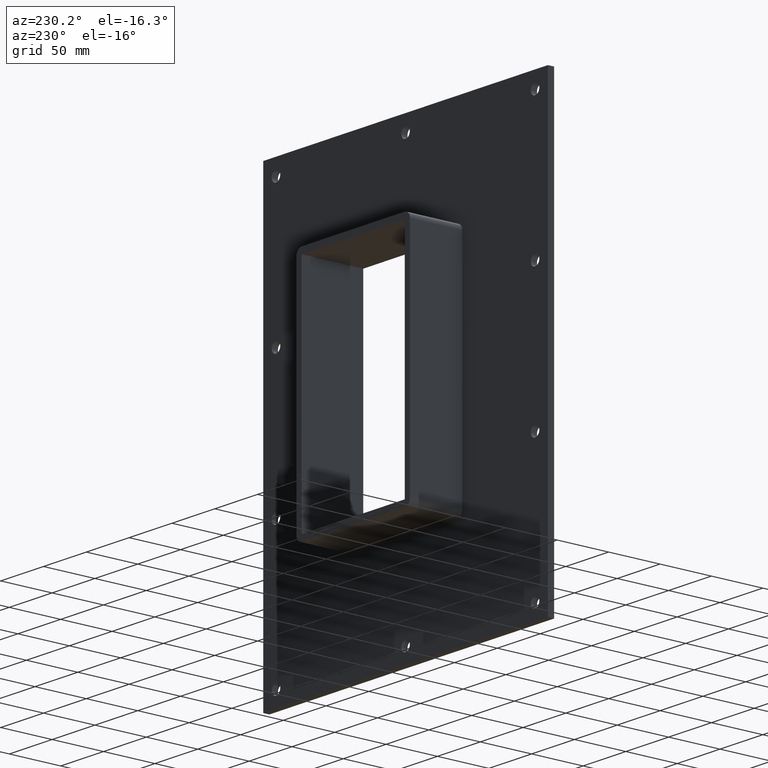
[diagram: clean part render]
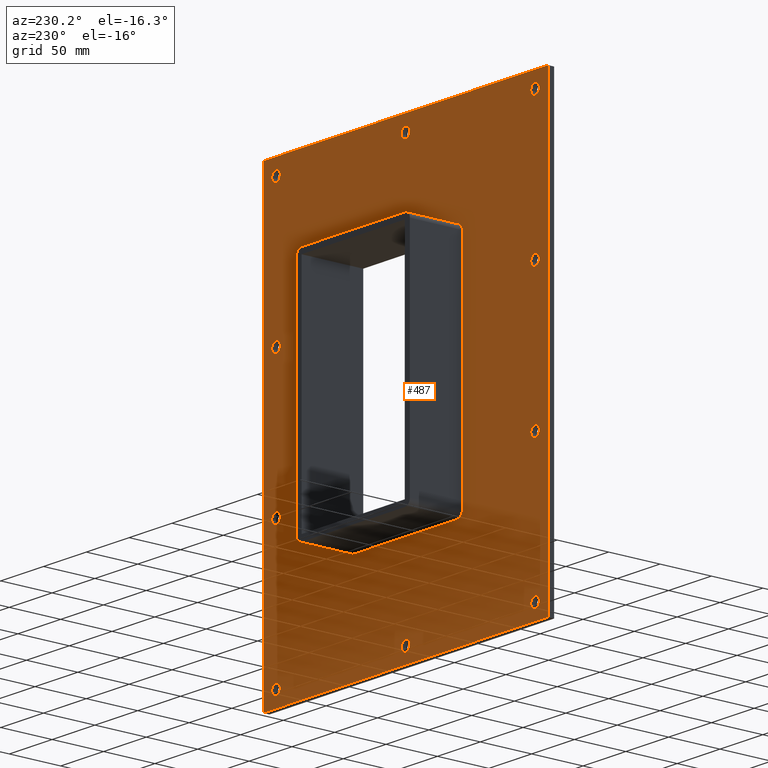
[diagram: same view with one face highlighted and labeled with its STEP entity id]
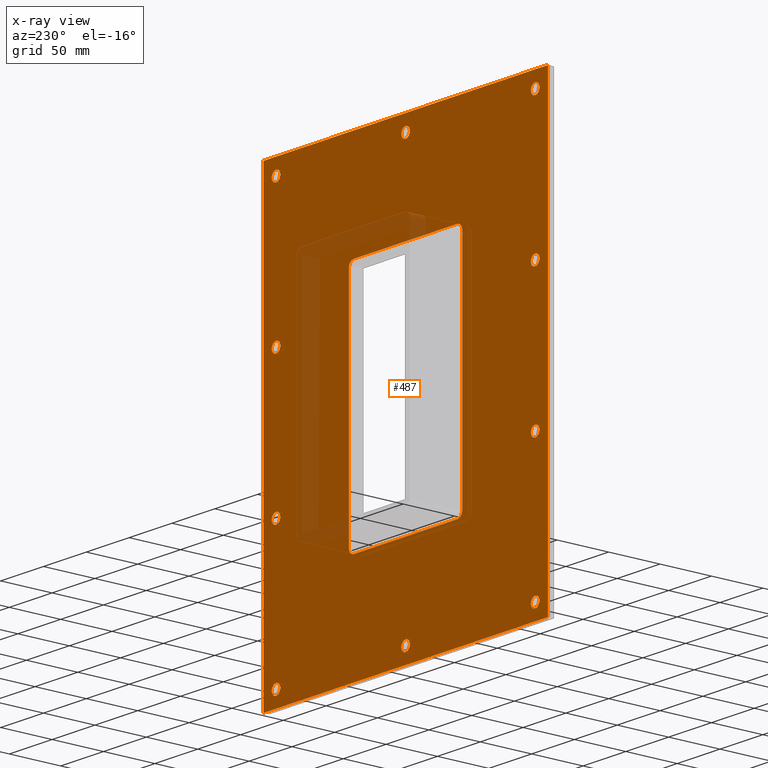
[diagram: x-ray of the same camera — body ghosted, the highlighted face saturated]
A machine part, auxiliary view. The second image highlights one B-rep face of the part: STEP entity #487.
The next image is the same camera in x-ray: the body ghosted, the highlighted face saturated — about 8% of this face is hidden behind the body in this view.
In plain terms, the highlighted planar face has unit normal (0, 1, 0).
Its self-contained STEP definition (entity closure, byte-faithful):
#73=CARTESIAN_POINT('',(-156.25000000000006,6.000000000000014,-199.99999999999994));
#74=VERTEX_POINT('',#73);
#75=CARTESIAN_POINT('',(-151.25000000000006,6.000000000000014,-199.99999999999994));
#76=DIRECTION('',(0.0,-1.0,0.0));
#77=DIRECTION('',(1.0,0.0,0.0));
#78=AXIS2_PLACEMENT_3D('',#75,#76,#77);
#79=CIRCLE('',#78,5.0);
#80=EDGE_CURVE('',#74,#74,#79,.T.);
#101=CARTESIAN_POINT('',(146.34999999999999,6.000000000000014,-66.699999999999875));
#102=VERTEX_POINT('',#101);
#103=CARTESIAN_POINT('',(151.34999999999999,6.000000000000014,-66.699999999999875));
#104=DIRECTION('',(0.0,-1.0,0.0));
#105=DIRECTION('',(1.0,0.0,0.0));
#106=AXIS2_PLACEMENT_3D('',#103,#104,#105);
#107=CIRCLE('',#106,5.0);
#108=EDGE_CURVE('',#102,#102,#107,.T.);
#129=CARTESIAN_POINT('',(-156.25000000000006,6.000000000000014,-66.699999999999875));
#130=VERTEX_POINT('',#129);
#131=CARTESIAN_POINT('',(-151.25000000000006,6.000000000000014,-66.699999999999875));
#132=DIRECTION('',(0.0,-1.0,0.0));
#133=DIRECTION('',(1.0,0.0,0.0));
#134=AXIS2_PLACEMENT_3D('',#131,#132,#133);
#135=CIRCLE('',#134,5.0);
#136=EDGE_CURVE('',#130,#130,#135,.T.);
#157=CARTESIAN_POINT('',(146.34999999999999,6.000000000000014,66.600000000000136));
#158=VERTEX_POINT('',#157);
#159=CARTESIAN_POINT('',(151.34999999999999,6.000000000000014,66.600000000000136));
#160=DIRECTION('',(0.0,-1.0,0.0));
#161=DIRECTION('',(1.0,0.0,0.0));
#162=AXIS2_PLACEMENT_3D('',#159,#160,#161);
#163=CIRCLE('',#162,5.0);
#164=EDGE_CURVE('',#158,#158,#163,.T.);
#185=CARTESIAN_POINT('',(-156.25000000000006,6.000000000000014,66.600000000000136));
#186=VERTEX_POINT('',#185);
#187=CARTESIAN_POINT('',(-151.25000000000006,6.000000000000014,66.600000000000136));
#188=DIRECTION('',(0.0,-1.0,0.0));
#189=DIRECTION('',(1.0,0.0,0.0));
#190=AXIS2_PLACEMENT_3D('',#187,#188,#189);
#191=CIRCLE('',#190,5.0);
#192=EDGE_CURVE('',#186,#186,#191,.T.);
#213=CARTESIAN_POINT('',(-4.950000000000028,6.000000000000014,199.90000000000015));
#214=VERTEX_POINT('',#213);
#215=CARTESIAN_POINT('',(0.049999999999972,6.000000000000014,199.90000000000015));
#216=DIRECTION('',(0.0,-1.0,0.0));
#217=DIRECTION('',(1.0,0.0,0.0));
#218=AXIS2_PLACEMENT_3D('',#215,#216,#217);
#219=CIRCLE('',#218,5.0);
#220=EDGE_CURVE('',#214,#214,#219,.T.);
#241=CARTESIAN_POINT('',(-4.950000000000028,6.000000000000014,-199.99999999999994));
#242=VERTEX_POINT('',#241);
#243=CARTESIAN_POINT('',(0.049999999999972,6.000000000000014,-199.99999999999994));
#244=DIRECTION('',(0.0,-1.0,0.0));
#245=DIRECTION('',(1.0,0.0,0.0));
#246=AXIS2_PLACEMENT_3D('',#243,#244,#245);
#247=CIRCLE('',#246,5.0);
#248=EDGE_CURVE('',#242,#242,#247,.T.);
#269=CARTESIAN_POINT('',(146.34999999999999,6.000000000000014,-199.99999999999994));
#270=VERTEX_POINT('',#269);
#271=CARTESIAN_POINT('',(151.34999999999999,6.000000000000014,-199.99999999999994));
#272=DIRECTION('',(0.0,-1.0,0.0));
#273=DIRECTION('',(1.0,0.0,0.0));
#274=AXIS2_PLACEMENT_3D('',#271,#272,#273);
#275=CIRCLE('',#274,5.0);
#276=EDGE_CURVE('',#270,#270,#275,.T.);
#297=CARTESIAN_POINT('',(-156.25000000000006,6.000000000000014,199.90000000000015));
#298=VERTEX_POINT('',#297);
#299=CARTESIAN_POINT('',(-151.25000000000006,6.000000000000014,199.90000000000015));
#300=DIRECTION('',(0.0,-1.0,0.0));
#301=DIRECTION('',(1.0,0.0,0.0));
#302=AXIS2_PLACEMENT_3D('',#299,#300,#301);
#303=CIRCLE('',#302,5.0);
#304=EDGE_CURVE('',#298,#298,#303,.T.);
#325=CARTESIAN_POINT('',(146.34999999999999,6.000000000000014,199.90000000000015));
#326=VERTEX_POINT('',#325);
#327=CARTESIAN_POINT('',(151.34999999999999,6.000000000000014,199.90000000000015));
#328=DIRECTION('',(0.0,-1.0,0.0));
#329=DIRECTION('',(1.0,0.0,0.0));
#330=AXIS2_PLACEMENT_3D('',#327,#328,#329);
#331=CIRCLE('',#330,5.0);
#332=EDGE_CURVE('',#326,#326,#331,.T.);
#348=CARTESIAN_POINT('',(0.0,6.000000000000001,3.238211E-014));
#349=DIRECTION('',(0.0,1.0,0.0));
#350=DIRECTION('',(0.0,0.0,1.0));
#351=AXIS2_PLACEMENT_3D('',#348,#349,#350);
#352=PLANE('',#351);
#353=CARTESIAN_POINT('',(-166.25,6.000000000000001,215.0));
#354=VERTEX_POINT('',#353);
#355=CARTESIAN_POINT('',(166.25,6.000000000000001,215.0));
#356=VERTEX_POINT('',#355);
#357=CARTESIAN_POINT('',(-166.25,6.000000000000001,215.0));
#358=DIRECTION('',(1.0,0.0,0.0));
#359=VECTOR('',#358,332.5);
#360=LINE('',#357,#359);
#361=EDGE_CURVE('',#354,#356,#360,.T.);
#362=ORIENTED_EDGE('',*,*,#361,.T.);
#363=CARTESIAN_POINT('',(166.25,6.000000000000001,-214.99999999999994));
#364=VERTEX_POINT('',#363);
#365=CARTESIAN_POINT('',(166.25,6.000000000000001,215.0));
#366=DIRECTION('',(0.0,0.0,-1.0));
#367=VECTOR('',#366,429.99999999999994);
#368=LINE('',#365,#367);
#369=EDGE_CURVE('',#356,#364,#368,.T.);
#370=ORIENTED_EDGE('',*,*,#369,.T.);
#371=CARTESIAN_POINT('',(-166.25,6.000000000000001,-214.99999999999994));
#372=VERTEX_POINT('',#371);
#373=CARTESIAN_POINT('',(166.25,6.000000000000001,-214.99999999999994));
#374=DIRECTION('',(-1.0,0.0,0.0));
#375=VECTOR('',#374,332.5);
#376=LINE('',#373,#375);
#377=EDGE_CURVE('',#364,#372,#376,.T.);
#378=ORIENTED_EDGE('',*,*,#377,.T.);
#379=CARTESIAN_POINT('',(-166.25,6.000000000000001,-214.99999999999994));
#380=DIRECTION('',(0.0,0.0,1.0));
#381=VECTOR('',#380,429.99999999999994);
#382=LINE('',#379,#381);
#383=EDGE_CURVE('',#372,#354,#382,.T.);
#384=ORIENTED_EDGE('',*,*,#383,.T.);
#385=EDGE_LOOP('',(#362,#370,#378,#384));
#386=FACE_OUTER_BOUND('',#385,.T.);
#387=ORIENTED_EDGE('',*,*,#80,.T.);
#388=EDGE_LOOP('',(#387));
#389=FACE_BOUND('',#388,.T.);
#390=ORIENTED_EDGE('',*,*,#108,.T.);
#391=EDGE_LOOP('',(#390));
#392=FACE_BOUND('',#391,.T.);
#393=ORIENTED_EDGE('',*,*,#136,.T.);
#394=EDGE_LOOP('',(#393));
#395=FACE_BOUND('',#394,.T.);
#396=ORIENTED_EDGE('',*,*,#164,.T.);
#397=EDGE_LOOP('',(#396));
#398=FACE_BOUND('',#397,.T.);
#399=ORIENTED_EDGE('',*,*,#192,.T.);
#400=EDGE_LOOP('',(#399));
#401=FACE_BOUND('',#400,.T.);
#402=ORIENTED_EDGE('',*,*,#220,.T.);
#403=EDGE_LOOP('',(#402));
#404=FACE_BOUND('',#403,.T.);
#405=ORIENTED_EDGE('',*,*,#248,.T.);
#406=EDGE_LOOP('',(#405));
#407=FACE_BOUND('',#406,.T.);
#408=ORIENTED_EDGE('',*,*,#276,.T.);
#409=EDGE_LOOP('',(#408));
#410=FACE_BOUND('',#409,.T.);
#411=ORIENTED_EDGE('',*,*,#304,.T.);
#412=EDGE_LOOP('',(#411));
#413=FACE_BOUND('',#412,.T.);
#414=ORIENTED_EDGE('',*,*,#332,.T.);
#415=EDGE_LOOP('',(#414));
#416=FACE_BOUND('',#415,.T.);
#417=CARTESIAN_POINT('',(-60.25,6.000000000000001,-115.00000000000001));
#418=VERTEX_POINT('',#417);
#419=CARTESIAN_POINT('',(-66.25,6.000000000000001,-109.00000000000003));
#420=VERTEX_POINT('',#419);
#421=CARTESIAN_POINT('',(-60.25,6.000000000000001,-109.00000000000003));
#422=DIRECTION('',(0.0,1.0,0.0));
#423=DIRECTION('',(-0.707106781186546,0.0,-0.707106781186549));
#424=AXIS2_PLACEMENT_3D('',#421,#422,#423);
#425=CIRCLE('',#424,6.000000000000001);
#426=EDGE_CURVE('',#418,#420,#425,.T.);
#427=ORIENTED_EDGE('',*,*,#426,.F.);
#428=CARTESIAN_POINT('',(60.25,6.000000000000001,-115.00000000000001));
#429=VERTEX_POINT('',#428);
#430=CARTESIAN_POINT('',(60.25,6.000000000000001,-115.00000000000001));
#431=DIRECTION('',(-1.0,0.0,0.0));
#432=VECTOR('',#431,120.5);
#433=LINE('',#430,#432);
#434=EDGE_CURVE('',#429,#418,#433,.T.);
#435=ORIENTED_EDGE('',*,*,#434,.F.);
#436=CARTESIAN_POINT('',(66.25,6.000000000000001,-109.00000000000003));
#437=VERTEX_POINT('',#436);
#438=CARTESIAN_POINT('',(60.25,6.000000000000001,-109.00000000000003));
#439=DIRECTION('',(0.0,1.0,0.0));
#440=DIRECTION('',(0.707106781186546,0.0,-0.707106781186549));
#441=AXIS2_PLACEMENT_3D('',#438,#439,#440);
#442=CIRCLE('',#441,6.000000000000001);
#443=EDGE_CURVE('',#437,#429,#442,.T.);
#444=ORIENTED_EDGE('',*,*,#443,.F.);
#445=CARTESIAN_POINT('',(66.25,6.000000000000001,108.99999999999999));
#446=VERTEX_POINT('',#445);
#447=CARTESIAN_POINT('',(66.25,6.000000000000001,108.99999999999999));
#448=DIRECTION('',(0.0,0.0,-1.0));
#449=VECTOR('',#448,218.0);
#450=LINE('',#447,#449);
#451=EDGE_CURVE('',#446,#437,#450,.T.);
#452=ORIENTED_EDGE('',*,*,#451,.F.);
#453=CARTESIAN_POINT('',(60.25,6.000000000000001,114.99999999999999));
#454=VERTEX_POINT('',#453);
#455=CARTESIAN_POINT('',(60.25,6.000000000000001,108.99999999999999));
#456=DIRECTION('',(0.0,1.0,0.0));
#457=DIRECTION('',(0.707106781186546,0.0,0.707106781186549));
#458=AXIS2_PLACEMENT_3D('',#455,#456,#457);
#459=CIRCLE('',#458,6.000000000000001);
#460=EDGE_CURVE('',#454,#446,#459,.T.);
#461=ORIENTED_EDGE('',*,*,#460,.F.);
#462=CARTESIAN_POINT('',(-60.25,6.000000000000001,114.99999999999999));
#463=VERTEX_POINT('',#462);
#464=CARTESIAN_POINT('',(-60.25,6.000000000000001,114.99999999999999));
#465=DIRECTION('',(1.0,0.0,0.0));
#466=VECTOR('',#465,120.5);
#467=LINE('',#464,#466);
#468=EDGE_CURVE('',#463,#454,#467,.T.);
#469=ORIENTED_EDGE('',*,*,#468,.F.);
#470=CARTESIAN_POINT('',(-66.25,6.000000000000001,108.99999999999999));
#471=VERTEX_POINT('',#470);
#472=CARTESIAN_POINT('',(-60.25,6.000000000000001,108.99999999999999));
#473=DIRECTION('',(0.0,1.0,0.0));
#474=DIRECTION('',(-0.707106781186546,0.0,0.707106781186549));
#475=AXIS2_PLACEMENT_3D('',#472,#473,#474);
#476=CIRCLE('',#475,6.000000000000001);
#477=EDGE_CURVE('',#471,#463,#476,.T.);
#478=ORIENTED_EDGE('',*,*,#477,.F.);
#479=CARTESIAN_POINT('',(-66.25,6.000000000000001,-109.00000000000003));
#480=DIRECTION('',(0.0,0.0,1.0));
#481=VECTOR('',#480,218.00000000000003);
#482=LINE('',#479,#481);
#483=EDGE_CURVE('',#420,#471,#482,.T.);
#484=ORIENTED_EDGE('',*,*,#483,.F.);
#485=EDGE_LOOP('',(#427,#435,#444,#452,#461,#469,#478,#484));
#486=FACE_BOUND('',#485,.T.);
#487=ADVANCED_FACE('',(#386,#389,#392,#395,#398,#401,#404,#407,#410,#413,#416,#486),#352,.T.);